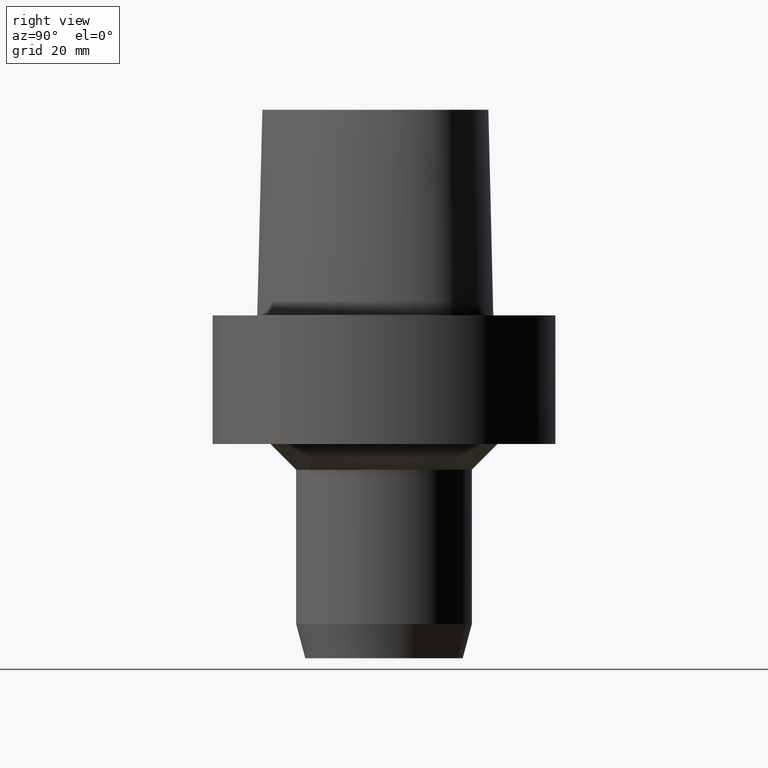
[diagram: clean part render]
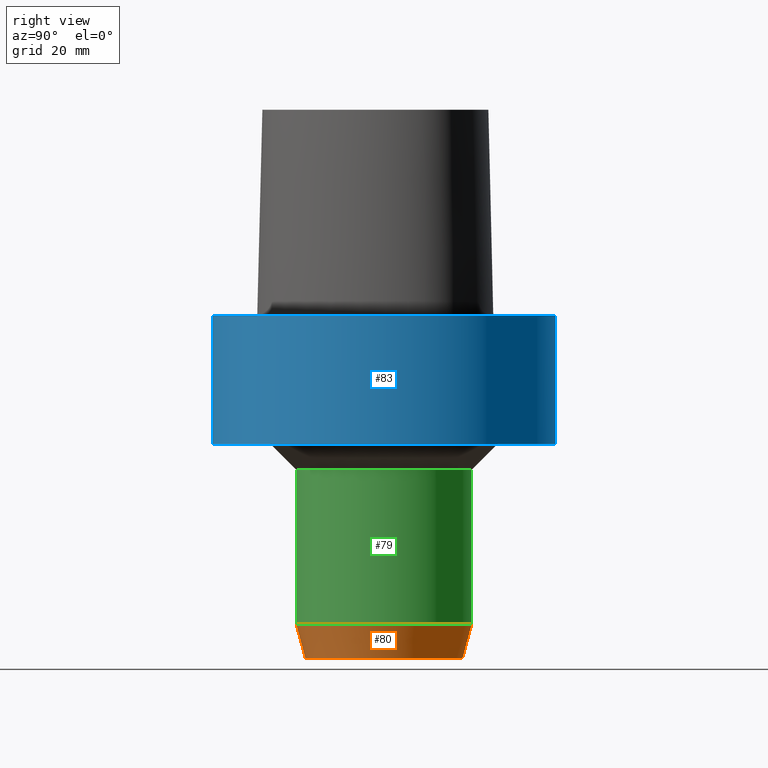
[diagram: same view with three faces highlighted in distinct colors, each labeled with its STEP entity id]
A machine part, right view with three faces highlighted in distinct colors.
Their STEP definitions:

[orange] entity #80 — the highlighted conical surface has half-angle 15 deg.
#80=ADVANCED_FACE('',(#98,#99),#100,.T.);
#98=FACE_BOUND('',#505,.T.);
#99=FACE_BOUND('',#506,.T.);
#100=CONICAL_SURFACE('',#507,19.4282032322792,0.261799387022768);
#505=EDGE_LOOP('',(#539));
#506=EDGE_LOOP('',(#540));
#507=AXIS2_PLACEMENT_3D('',#541,#542,#543);
#539=ORIENTED_EDGE('',*,*,#565,.F.);
#540=ORIENTED_EDGE('',*,*,#564,.T.);
#541=CARTESIAN_POINT('',(4.65365783645719E-015,9.30731567291438E-015,-75.9999999950557));
#542=DIRECTION('',(-6.12323399573677E-017,-1.22464679914735E-016,1.0));
#543=DIRECTION('',(-1.23259516440783E-032,1.0,1.22464679914735E-016));
#564=EDGE_CURVE('',#578,#578,#579,.T.);
#565=EDGE_CURVE('',#580,#580,#581,.T.);
#578=VERTEX_POINT('',#741);
#579=CIRCLE('',#742,20.5);
#580=VERTEX_POINT('',#743);
#581=CIRCLE('',#744,18.3564064645584);
#741=CARTESIAN_POINT('',(4.40872847632497E-015,20.5,-71.9999999901114));
#742=AXIS2_PLACEMENT_3D('',#756,#757,#758);
#743=CARTESIAN_POINT('',(4.89858719658941E-015,18.3564064645584,-80.0));
#744=AXIS2_PLACEMENT_3D('',#759,#760,#761);
#756=CARTESIAN_POINT('',(4.40872847632497E-015,8.81745695264994E-015,-71.9999999901114));
#757=DIRECTION('',(6.12323399573677E-017,1.22464679914735E-016,-1.0));
#758=DIRECTION('',(-1.23259516440783E-032,1.0,1.22464679914735E-016));
#759=CARTESIAN_POINT('',(4.89858719658941E-015,9.79717439317882E-015,-80.0));
#760=DIRECTION('',(6.12323399573677E-017,1.22464679914735E-016,-1.0));
#761=DIRECTION('',(-1.23259516440783E-032,1.0,1.22464679914735E-016));

[blue] entity #83 — the highlighted cylindrical surface (bore or boss wall) has radius 39.9925 mm, axis along (-0, -0, 1).
#83=ADVANCED_FACE('',(#106,#107),#108,.T.);
#106=FACE_BOUND('',#513,.T.);
#107=FACE_BOUND('',#514,.T.);
#108=CYLINDRICAL_SURFACE('',#515,39.9925);
#513=EDGE_LOOP('',(#553));
#514=EDGE_LOOP('',(#554));
#515=AXIS2_PLACEMENT_3D('',#555,#556,#557);
#553=ORIENTED_EDGE('',*,*,#562,.F.);
#554=ORIENTED_EDGE('',*,*,#566,.T.);
#555=CARTESIAN_POINT('',(9.18485099360515E-016,1.83697019872103E-015,-15.0));
#556=DIRECTION('',(-6.12323399573677E-017,-1.22464679914735E-016,1.0));
#557=DIRECTION('',(-1.23259516440783E-032,1.0,1.22464679914735E-016));
#562=EDGE_CURVE('',#574,#574,#575,.T.);
#566=EDGE_CURVE('',#582,#582,#583,.T.);
#574=VERTEX_POINT('',#737);
#575=CIRCLE('',#738,39.9925);
#582=VERTEX_POINT('',#745);
#583=CIRCLE('',#746,39.9925);
#737=CARTESIAN_POINT('',(1.83697019872103E-015,39.9925,-30.0));
#738=AXIS2_PLACEMENT_3D('',#750,#751,#752);
#745=CARTESIAN_POINT('',(-4.92945621125802E-031,39.9925,4.89766871149005E-015));
#746=AXIS2_PLACEMENT_3D('',#762,#763,#764);
#750=CARTESIAN_POINT('',(1.83697019872103E-015,3.67394039744206E-015,-30.0));
#751=DIRECTION('',(6.12323399573677E-017,1.22464679914735E-016,-1.0));
#752=DIRECTION('',(-1.23259516440783E-032,1.0,1.22464679914735E-016));
#762=CARTESIAN_POINT('',(0.0,0.0,0.0));
#763=DIRECTION('',(6.12323399573677E-017,1.22464679914735E-016,-1.0));
#764=DIRECTION('',(-1.23259516440783E-032,1.0,1.22464679914735E-016));

[green] entity #79 — the highlighted cylindrical surface (bore or boss wall) has radius 20.5 mm, axis along (-0, -0, 1).
#79=ADVANCED_FACE('',(#95,#96),#97,.T.);
#95=FACE_BOUND('',#502,.T.);
#96=FACE_BOUND('',#503,.T.);
#97=CYLINDRICAL_SURFACE('',#504,20.5);
#502=EDGE_LOOP('',(#534));
#503=EDGE_LOOP('',(#535));
#504=AXIS2_PLACEMENT_3D('',#536,#537,#538);
#534=ORIENTED_EDGE('',*,*,#564,.F.);
#535=ORIENTED_EDGE('',*,*,#563,.T.);
#536=CARTESIAN_POINT('',(3.3065463573951E-015,6.6130927147902E-015,-53.9999999950557));
#537=DIRECTION('',(-6.12323399573677E-017,-1.22464679914735E-016,1.0));
#538=DIRECTION('',(-1.23259516440783E-032,1.0,1.22464679914735E-016));
#563=EDGE_CURVE('',#576,#576,#577,.T.);
#564=EDGE_CURVE('',#578,#578,#579,.T.);
#576=VERTEX_POINT('',#739);
#577=CIRCLE('',#740,20.5);
#578=VERTEX_POINT('',#741);
#579=CIRCLE('',#742,20.5);
#739=CARTESIAN_POINT('',(2.20436423846524E-015,20.5,-36.0));
#740=AXIS2_PLACEMENT_3D('',#753,#754,#755);
#741=CARTESIAN_POINT('',(4.40872847632497E-015,20.5,-71.9999999901114));
#742=AXIS2_PLACEMENT_3D('',#756,#757,#758);
#753=CARTESIAN_POINT('',(2.20436423846524E-015,4.40872847693047E-015,-36.0));
#754=DIRECTION('',(6.12323399573677E-017,1.22464679914735E-016,-1.0));
#755=DIRECTION('',(-1.23259516440783E-032,1.0,1.22464679914735E-016));
#756=CARTESIAN_POINT('',(4.40872847632497E-015,8.81745695264994E-015,-71.9999999901114));
#757=DIRECTION('',(6.12323399573677E-017,1.22464679914735E-016,-1.0));
#758=DIRECTION('',(-1.23259516440783E-032,1.0,1.22464679914735E-016));